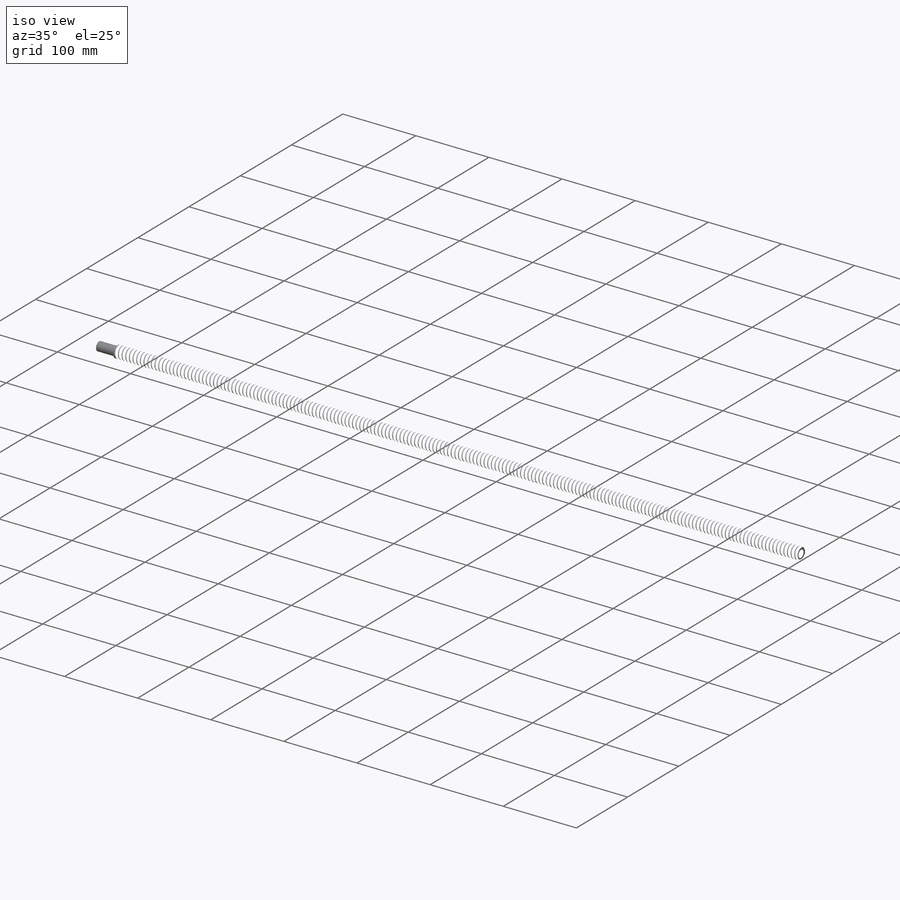
[diagram: iso view]
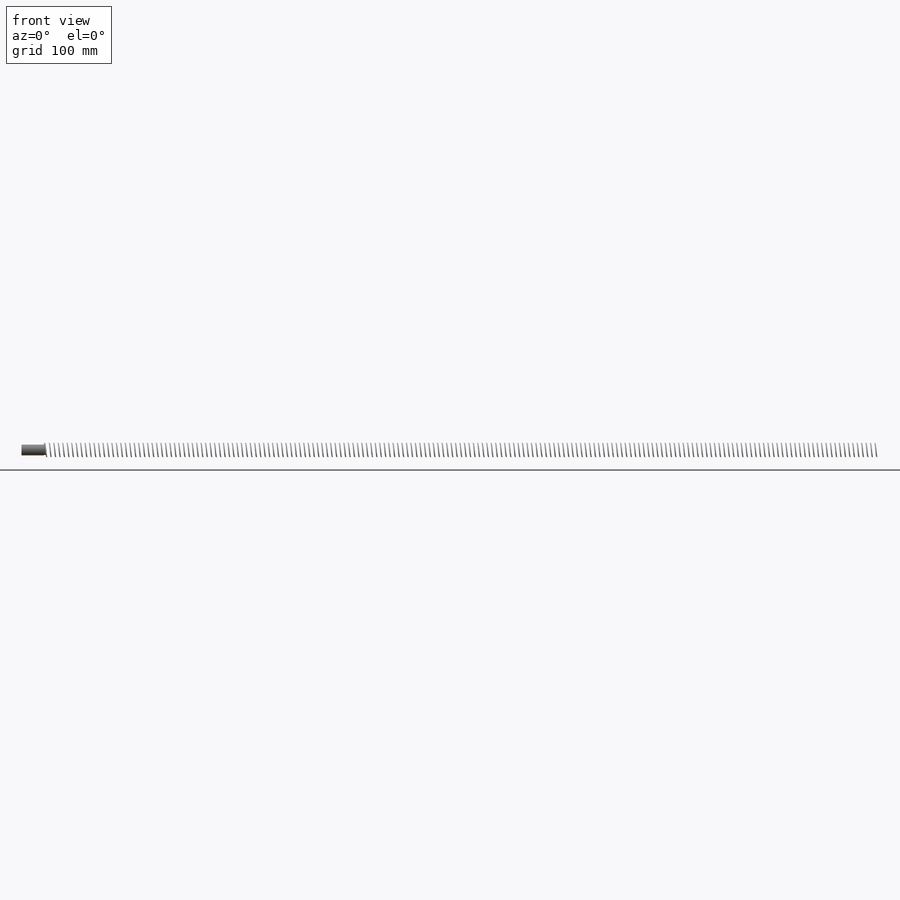
[diagram: front view]
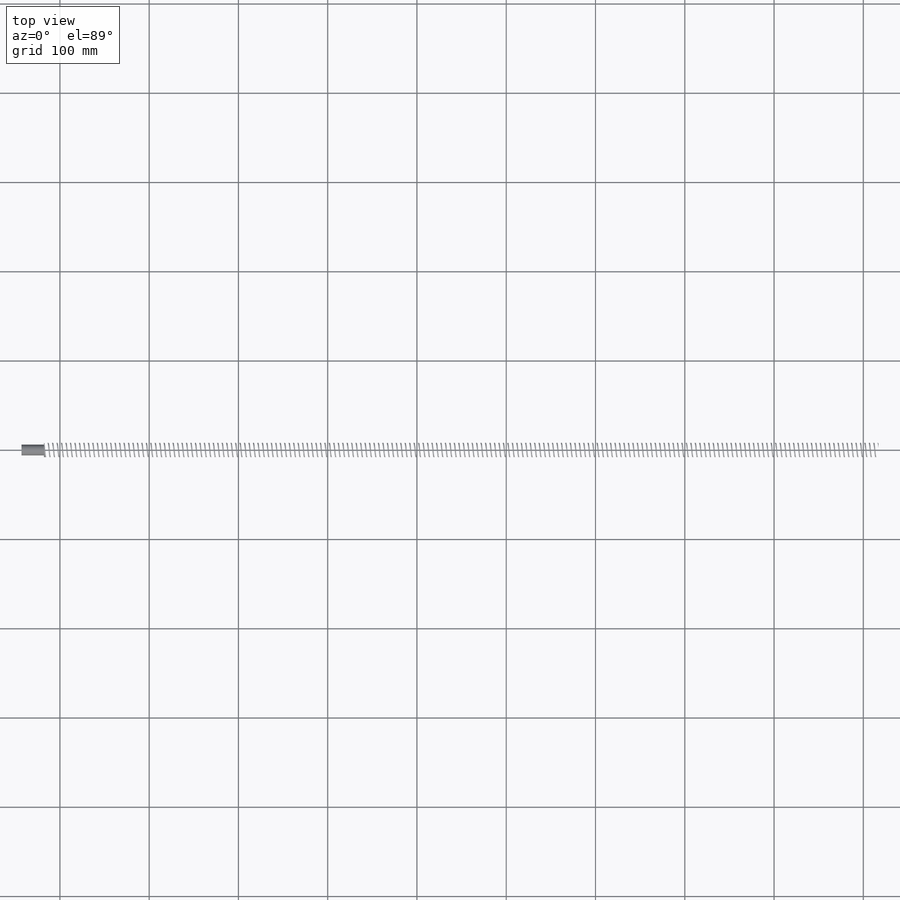
[diagram: top view]
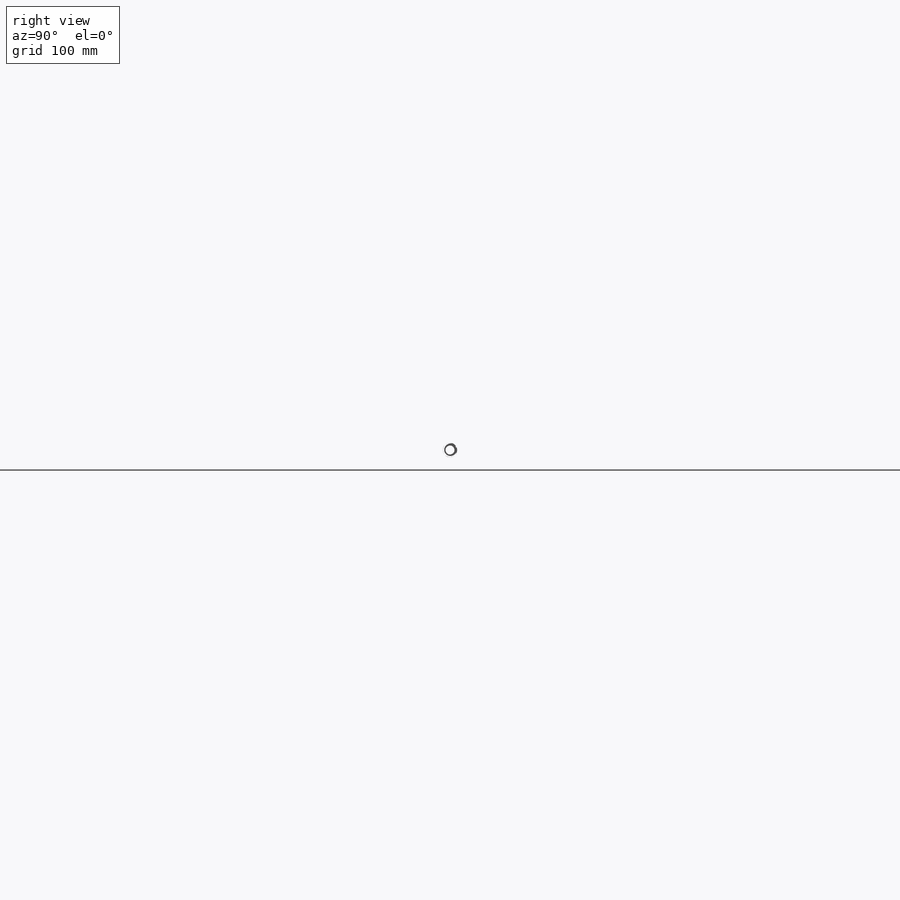
[diagram: right view]
SOLIDWORKS PART (.sldprt)
format: sldprt  version: not decoded by parser v0  size: 6,372,352 bytes
history: native  units: mm
features: plane x5, sketch x4, material x1, revolve x1, helix x1, sweep x1, cut_extrude x1 (+8 scaffold rows collapsed)
feature tree (22):
  scaffold x8  (default folders/planes/origin — collapsed)
  material  "Material <não especificado>"
  plane  "Plano frontal"
  plane  "Plano superior"
  plane  "Plano direito"
  plane  "Plano2"
  sketch  "Esboço10"  dims[c1.D1=5.0mm c1.D2=1.15mm c1.D3=0.2mm c1.D4=3.0mm c1.D5=11.0mm c1.D6=39.0mm c1.D7=15.0mm c1.D8=2.0mm c1.D9=6.0mm c1.D10=1.0mm c1.D11=8.0mm c2.D9=8.3mm c2.D11=5.0mm c2.D12=~2.976143mm c2.D2=1.2mm c3.D12=926.85mm c4.D12=~179.69932deg c5.D12=1000.0mm c5.D13=39.0mm c6.D13=~0.15034deg c6.D14=~5.102333mm c7.D13=5.0mm c7.D4=6.0mm c7.D8=5.0mm c7.D10=8.0mm]
  revolve  "Revolução3"  Angle=360deg
  plane  "Plano3"  Offset=4mm
  sketch  "Esboço13"  dims[D1=16.8mm]
  helix  "Hélice/Espiral2"  Pitch=938.75mm
  sketch  "Esboço14"  dims[D1=3.8mm D2=2.5mm D3=0.2mm]
  sweep  "Varredura de corte2"
  sketch  "Esboço15"  dims[D1=11.9mm]
  cut_extrude  "Rosca_M12x1"  Depth=14mm
decode coverage: 7 of 8 modeling features carry decoded parameters
note: ~ marks probable driven/reference dimensions
note: suppression state not decoded; provenance and decode notes live in map.json
